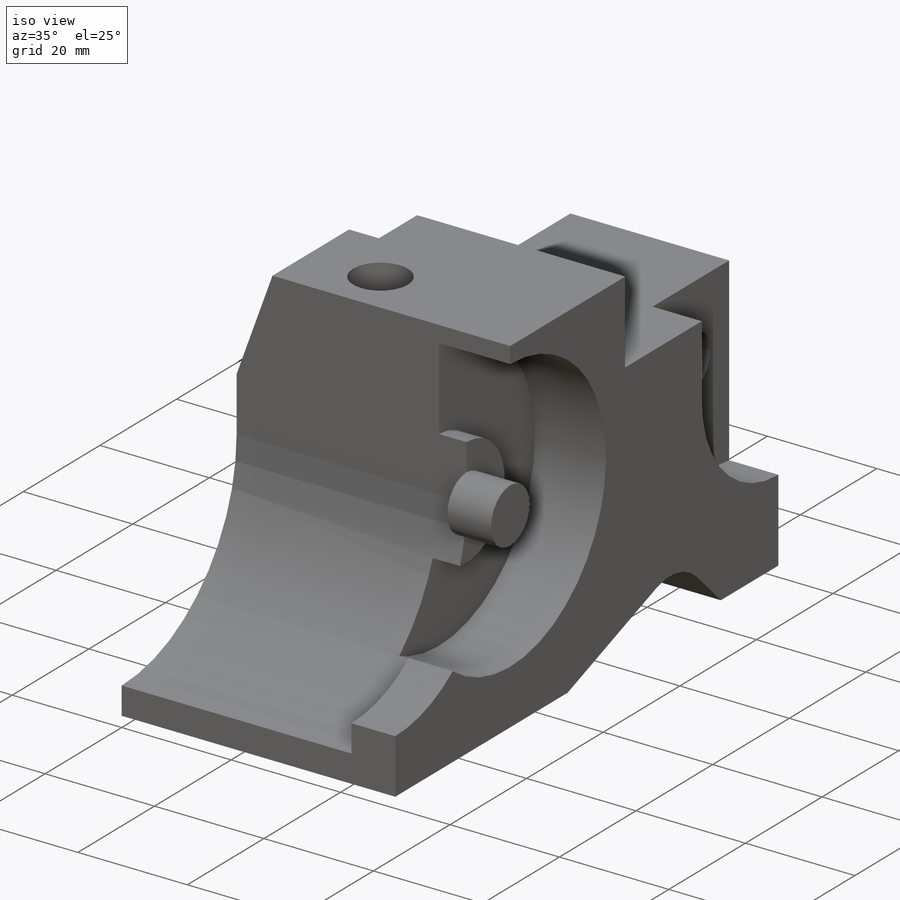
[diagram: iso view]
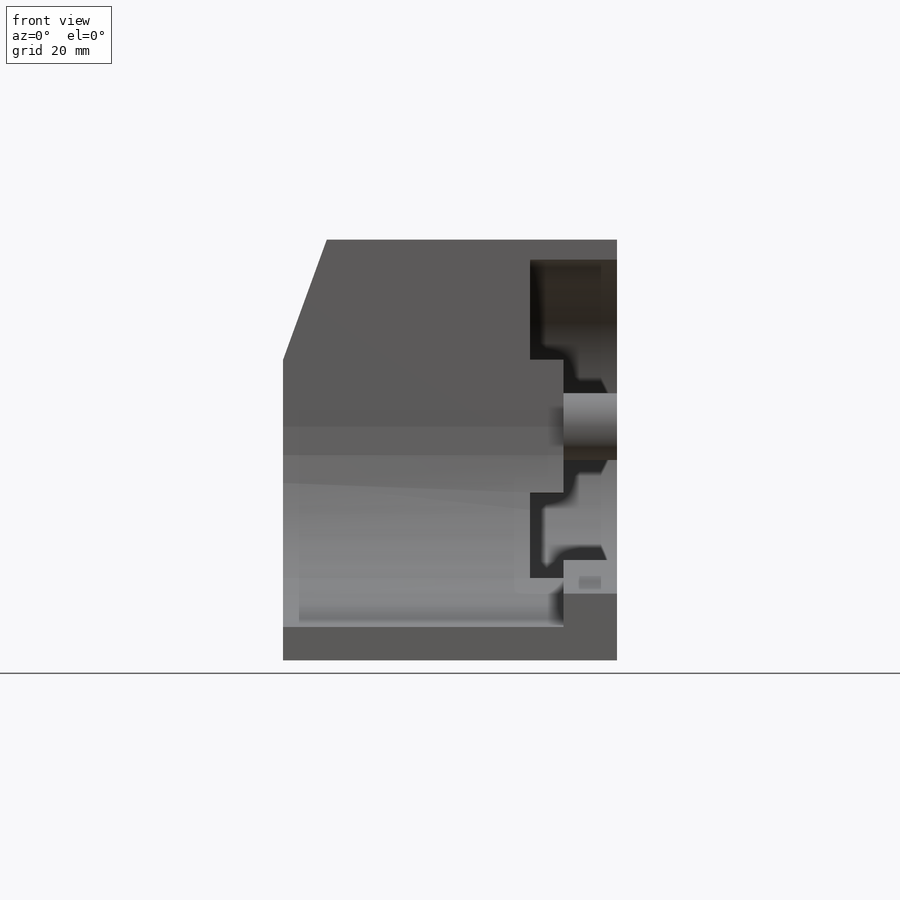
[diagram: front view]
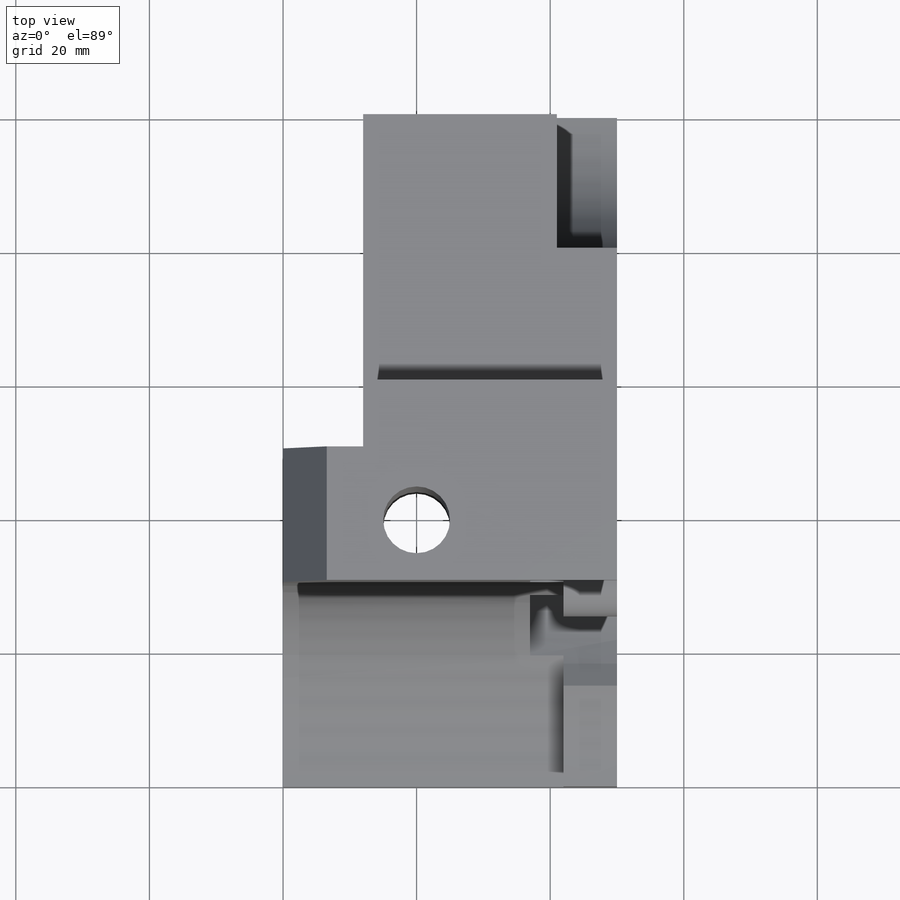
[diagram: top view]
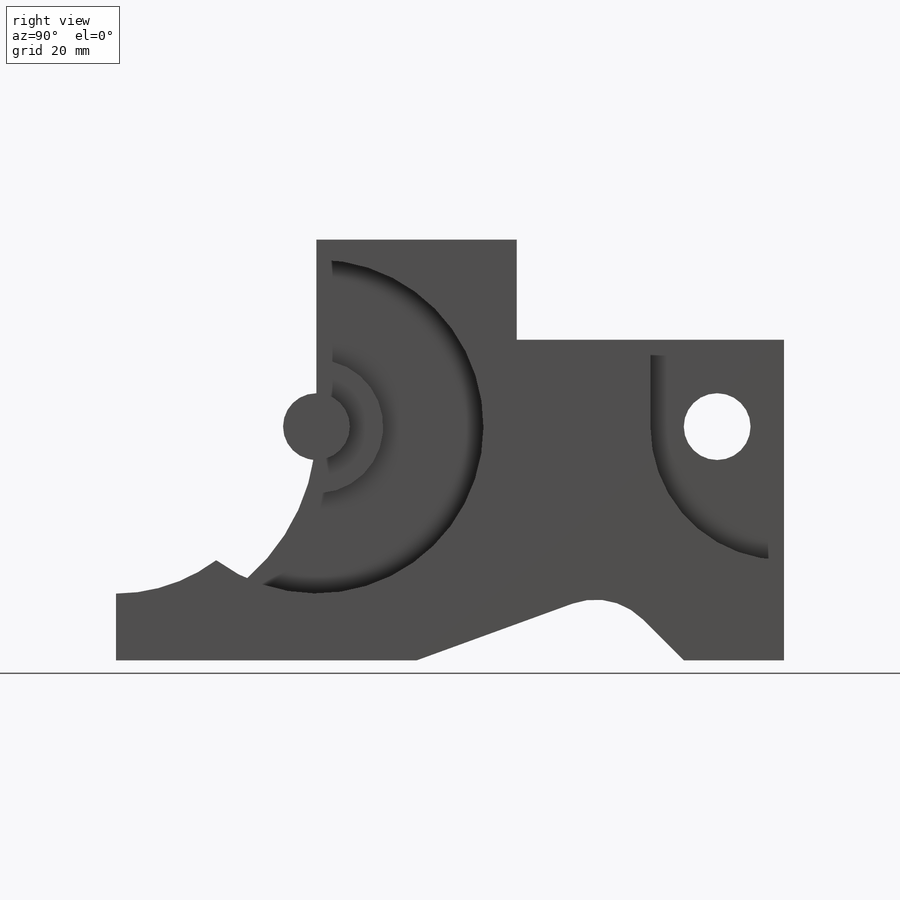
[diagram: right view]
SOLIDWORKS PART (.sldprt)
format: sldprt  version: not decoded by parser v0  size: 336,384 bytes
history: native  units: mm
features: sketch x14, cut_extrude x12, extrude x2, material x1, fillet x1 (+13 scaffold rows collapsed)
feature tree (43):
  scaffold x13  (default folders/planes/origin — collapsed)
  material  "Copper"
  sketch  "Sketch1"  dims[D1=50.0mm D2=63.0mm]
  extrude  "Boss-Extrude1"  Depth=100mm
  sketch  "Sketch2"  dims[c1.D1=15.0mm c1.D2=40.0mm c1.D3=~25.232165mm c2.D3=20.0deg c2.D4=~18.434311mm c3.D4=45.0deg]
  cut_extrude  "Cut-Extrude1"  [1 undecoded]
  fillet  "Fillet1"  Radius=10mm
  sketch  "Sketch3"  dims[D1=12.0mm D2=50.0mm]
  cut_extrude  "Cut-Extrude2"  [1 undecoded]
  sketch  "Sketch4"  dims[D1=15.0mm D2=40.0mm]
  cut_extrude  "Cut-Extrude3"  [1 undecoded]
  sketch  "Sketch5"  dims[D2=40.0mm D1=35.0mm]
  cut_extrude  "Cut-Extrude4"  Depth=9mm
  sketch  "Sketch6"  dims[D3=10.0mm D1=10.0mm D2=35.0mm]
  cut_extrude  "Cut-Extrude5"  [1 undecoded]
  sketch  "Sketch9"  dims[D2=50.0mm D1=35.0mm D3=30.0mm]
  cut_extrude  "Cut-Extrude8"  Depth=8mm
  sketch  "Sketch11"  dims[D1=60.0mm D2=35.0mm]
  cut_extrude  "Cut-Extrude9"  Depth=42mm
  sketch  "Sketch13"  dims[D2=50.0mm D1=35.0mm]
  cut_extrude  "Cut-Extrude10"  [1 undecoded]
  sketch  "Sketch14"  dims[D1=20.0mm D2=50.0mm]
  cut_extrude  "Cut-Extrude11"  Depth=5mm
  sketch  "Sketch15"
  cut_extrude  "Cut-Extrude12"  [1 undecoded]
  sketch  "Sketch16"  dims[D1=10.0mm]
  extrude  "Boss-Extrude3"  [1 undecoded]
  sketch  "Sketch17"  dims[c1.D1=18.0mm c1.D2=18.0mm c2.D2=20.0deg]
  cut_extrude  "Cut-Extrude13"  [1 undecoded]
  sketch  "Sketch18"  dims[D3=10.0mm D1=20.0mm D2=9.0mm]
  cut_extrude  "Cut-Extrude14"  [1 undecoded]
decode coverage: 19 of 29 modeling features carry decoded parameters
note: ~ marks probable driven/reference dimensions
note: 9 parameter values undecoded
summary: no parameter record found for 9 features
note: suppression state not decoded; provenance and decode notes live in map.json
